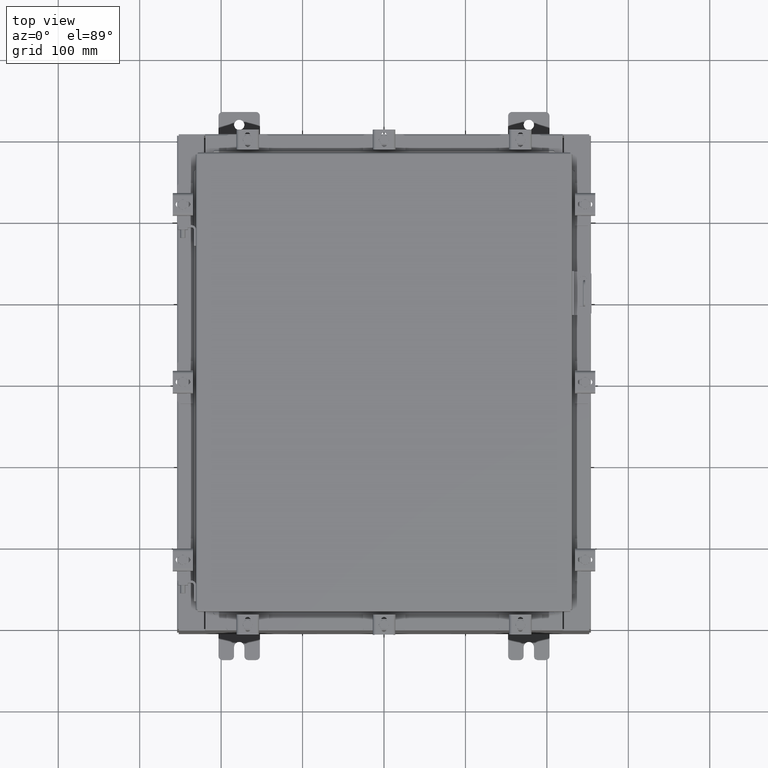
[diagram: clean part render]
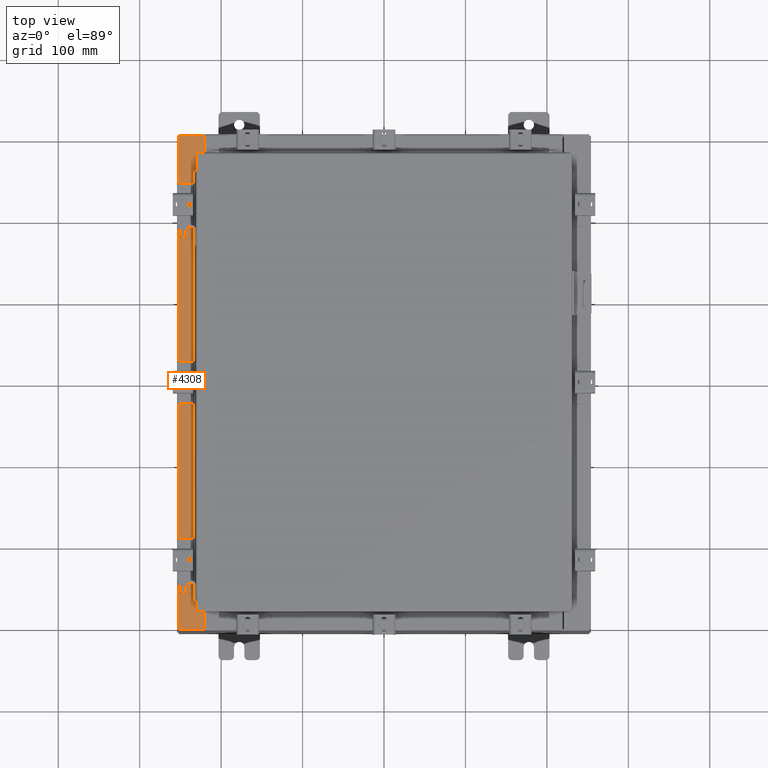
[diagram: same view with one face highlighted and labeled with its STEP entity id]
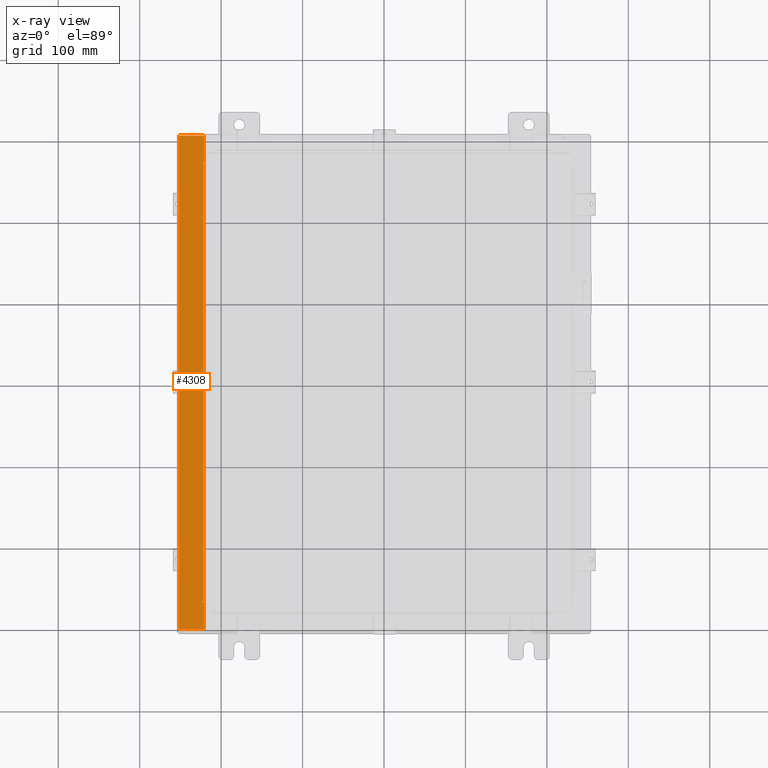
[diagram: x-ray of the same camera — body ghosted, the highlighted face saturated]
A machine part, top view. The second image highlights one B-rep face of the part: STEP entity #4308.
The next image is the same camera in x-ray: the body ghosted, the highlighted face saturated — about 0% of this face is hidden behind the body in this view.
In plain terms, the highlighted planar face has unit normal (0, 0, -1).
Its self-contained STEP definition (entity closure, byte-faithful):
#18 = LINE ( 'NONE', #11411, #4156 ) ;
#289 = CARTESIAN_POINT ( 'NONE',  ( -8.750050000000037200, -10.61242499999999300, 9.925300000000007100 ) ) ;
#371 = CARTESIAN_POINT ( 'NONE',  ( -8.712700000000035400, 10.59375000000000200, 9.925300000000007100 ) ) ;
#506 = VERTEX_POINT ( 'NONE', #3111 ) ;
#811 = LINE ( 'NONE', #15645, #9595 ) ;
#1470 = EDGE_CURVE ( 'NONE', #20922, #16883, #17257, .T. ) ;
#1563 = VECTOR ( 'NONE', #12637, 39.37007874015748100 ) ;
#2013 = EDGE_CURVE ( 'NONE', #6816, #8163, #2755, .T. ) ;
#2066 = DIRECTION ( 'NONE',  ( 1.000000000000000000, 0.0000000000000000000, 0.0000000000000000000 ) ) ;
#2755 = LINE ( 'NONE', #17030, #6840 ) ;
#2845 = DIRECTION ( 'NONE',  ( -1.000000000000000000, 0.0000000000000000000, 0.0000000000000000000 ) ) ;
#2927 = EDGE_CURVE ( 'NONE', #8943, #15716, #9525, .T. ) ;
#2987 = VERTEX_POINT ( 'NONE', #4336 ) ;
#3111 = CARTESIAN_POINT ( 'NONE',  ( -8.712700000000035400, -10.59374999999999300, 9.925300000000007100 ) ) ;
#3191 = ORIENTED_EDGE ( 'NONE', *, *, #11004, .F. ) ;
#3442 = AXIS2_PLACEMENT_3D ( 'NONE', #16708, #6274, #18440 ) ;
#3773 = ORIENTED_EDGE ( 'NONE', *, *, #19060, .T. ) ;
#4156 = VECTOR ( 'NONE', #21799, 39.37007874015748100 ) ;
#4275 = LINE ( 'NONE', #15037, #12994 ) ;
#4308 = ADVANCED_FACE ( 'NONE', ( #20929 ), #14792, .F. ) ;
#4336 = CARTESIAN_POINT ( 'NONE',  ( -9.912300000000035600, -11.92529999999999600, 9.925299999999998200 ) ) ;
#4760 = DIRECTION ( 'NONE',  ( -1.000000000000000000, -1.633973368572597200E-031, -7.132762385546378400E-015 ) ) ;
#4829 = CIRCLE ( 'NONE', #3442, 0.01867499999999949400 ) ;
#5296 = CARTESIAN_POINT ( 'NONE',  ( -9.912300000000035600, 11.92530000000000000, 9.925299999999998200 ) ) ;
#5573 = EDGE_CURVE ( 'NONE', #8943, #6816, #18437, .T. ) ;
#5828 = EDGE_CURVE ( 'NONE', #15716, #20922, #4829, .T. ) ;
#5856 = EDGE_CURVE ( 'NONE', #506, #11139, #4275, .T. ) ;
#6274 = DIRECTION ( 'NONE',  ( -7.132762385546378400E-015, -0.0000000000000000000, 1.000000000000000000 ) ) ;
#6326 = ORIENTED_EDGE ( 'NONE', *, *, #9462, .T. ) ;
#6448 = ORIENTED_EDGE ( 'NONE', *, *, #5573, .T. ) ;
#6578 = ORIENTED_EDGE ( 'NONE', *, *, #13529, .F. ) ;
#6594 = EDGE_LOOP ( 'NONE', ( #11961, #6448, #18488, #3191, #3773, #6326, #12826, #6578, #18800, #18165, #21714, #15121 ) ) ;
#6816 = VERTEX_POINT ( 'NONE', #12347 ) ;
#6840 = VECTOR ( 'NONE', #4760, 39.37007874015748100 ) ;
#7410 = DIRECTION ( 'NONE',  ( -6.427586101948161900E-031, 1.000000000000000000, -4.584644437783652100E-045 ) ) ;
#8051 = CARTESIAN_POINT ( 'NONE',  ( -9.912300000000035600, 11.92530000000000000, 9.925299999999998200 ) ) ;
#8163 = VERTEX_POINT ( 'NONE', #5296 ) ;
#8713 = DIRECTION ( 'NONE',  ( 1.000000000000000000, 0.0000000000000000000, 0.0000000000000000000 ) ) ;
#8943 = VERTEX_POINT ( 'NONE', #13488 ) ;
#9462 = EDGE_CURVE ( 'NONE', #22048, #22490, #18, .T. ) ;
#9525 = LINE ( 'NONE', #17825, #18254 ) ;
#9595 = VECTOR ( 'NONE', #8713, 39.37007874015748100 ) ;
#10267 = VERTEX_POINT ( 'NONE', #13206 ) ;
#10339 = LINE ( 'NONE', #371, #1563 ) ;
#10533 = EDGE_CURVE ( 'NONE', #10267, #22490, #811, .T. ) ;
#10873 = CIRCLE ( 'NONE', #18650, 0.01867499999999949400 ) ;
#11004 = EDGE_CURVE ( 'NONE', #2987, #8163, #21039, .T. ) ;
#11139 = VERTEX_POINT ( 'NONE', #11894 ) ;
#11411 = CARTESIAN_POINT ( 'NONE',  ( -8.699700000000035500, -5.591807081111819100E-030, 9.925300000000007100 ) ) ;
#11887 = DIRECTION ( 'NONE',  ( 1.000000000000000000, 0.0000000000000000000, 0.0000000000000000000 ) ) ;
#11894 = CARTESIAN_POINT ( 'NONE',  ( -8.750050000000037200, -10.59374999999999300, 9.925300000000005300 ) ) ;
#11961 = ORIENTED_EDGE ( 'NONE', *, *, #2927, .F. ) ;
#12347 = CARTESIAN_POINT ( 'NONE',  ( -8.699700000000035500, 11.92530000000000000, 9.925300000000007100 ) ) ;
#12529 = DIRECTION ( 'NONE',  ( -7.132762385546378400E-015, -0.0000000000000000000, 1.000000000000000000 ) ) ;
#12632 = VECTOR ( 'NONE', #11887, 39.37007874015748100 ) ;
#12637 = DIRECTION ( 'NONE',  ( -0.0000000000000000000, -1.000000000000000000, -0.0000000000000000000 ) ) ;
#12826 = ORIENTED_EDGE ( 'NONE', *, *, #10533, .F. ) ;
#12915 = EDGE_CURVE ( 'NONE', #16883, #506, #10339, .T. ) ;
#12994 = VECTOR ( 'NONE', #2845, 39.37007874015748100 ) ;
#13158 = CARTESIAN_POINT ( 'NONE',  ( -8.750050000000037200, 10.63109999999999800, 9.925300000000005300 ) ) ;
#13179 = CARTESIAN_POINT ( 'NONE',  ( -8.750050000000037200, 10.59375000000000000, 9.925300000000005300 ) ) ;
#13206 = CARTESIAN_POINT ( 'NONE',  ( -8.750050000000037200, -10.63109999999999300, 9.925300000000005300 ) ) ;
#13286 = VECTOR ( 'NONE', #7410, 39.37007874015748100 ) ;
#13471 = DIRECTION ( 'NONE',  ( -1.000000000000000000, -4.340572780399910900E-014, 0.0000000000000000000 ) ) ;
#13488 = CARTESIAN_POINT ( 'NONE',  ( -8.699700000000035500, 10.63110000000000200, 9.925300000000007100 ) ) ;
#13529 = EDGE_CURVE ( 'NONE', #11139, #10267, #10873, .T. ) ;
#14116 = CARTESIAN_POINT ( 'NONE',  ( -8.712700000000035400, 10.59375000000000000, 9.925300000000007100 ) ) ;
#14594 = DIRECTION ( 'NONE',  ( -1.000000000000000000, 0.0000000000000000000, -7.132762385546378400E-015 ) ) ;
#14670 = DIRECTION ( 'NONE',  ( 7.132762385546378400E-015, 0.0000000000000000000, -1.000000000000000000 ) ) ;
#14728 = CARTESIAN_POINT ( 'NONE',  ( -7.105562016127552700E-014, 0.0000000000000000000, 9.925300000000067500 ) ) ;
#14792 = PLANE ( 'NONE',  #18871 ) ;
#15037 = CARTESIAN_POINT ( 'NONE',  ( -8.712700000000035400, -10.59374999999999300, 9.925300000000007100 ) ) ;
#15121 = ORIENTED_EDGE ( 'NONE', *, *, #5828, .F. ) ;
#15645 = CARTESIAN_POINT ( 'NONE',  ( -8.750050000000037200, -10.63109999999999300, 9.925300000000007100 ) ) ;
#15716 = VERTEX_POINT ( 'NONE', #13158 ) ;
#15997 = VECTOR ( 'NONE', #18054, 39.37007874015748100 ) ;
#16178 = CARTESIAN_POINT ( 'NONE',  ( -8.699700000000035500, -11.92529999999999500, 9.925300000000007100 ) ) ;
#16283 = CARTESIAN_POINT ( 'NONE',  ( -4.979053734218649800E-014, -11.92529999999998000, 9.925300000000067500 ) ) ;
#16708 = CARTESIAN_POINT ( 'NONE',  ( -8.750050000000037200, 10.61242500000000000, 9.925300000000007100 ) ) ;
#16883 = VERTEX_POINT ( 'NONE', #14116 ) ;
#17030 = CARTESIAN_POINT ( 'NONE',  ( -7.105562016127552700E-014, 11.92530000000000000, 9.925300000000067500 ) ) ;
#17257 = LINE ( 'NONE', #17436, #12632 ) ;
#17436 = CARTESIAN_POINT ( 'NONE',  ( -8.750050000000037200, 10.59375000000000000, 9.925300000000007100 ) ) ;
#17825 = CARTESIAN_POINT ( 'NONE',  ( -8.699700000000035500, 10.63110000000000200, 9.925300000000007100 ) ) ;
#17864 = CARTESIAN_POINT ( 'NONE',  ( -8.699700000000035500, -5.591807081111819100E-030, 9.925300000000007100 ) ) ;
#18054 = DIRECTION ( 'NONE',  ( 1.000000000000000000, 1.783190596386595000E-015, 7.132762385546378400E-015 ) ) ;
#18165 = ORIENTED_EDGE ( 'NONE', *, *, #12915, .F. ) ;
#18254 = VECTOR ( 'NONE', #13471, 39.37007874015748100 ) ;
#18437 = LINE ( 'NONE', #17864, #13286 ) ;
#18440 = DIRECTION ( 'NONE',  ( 1.000000000000000000, 0.0000000000000000000, 0.0000000000000000000 ) ) ;
#18488 = ORIENTED_EDGE ( 'NONE', *, *, #2013, .T. ) ;
#18650 = AXIS2_PLACEMENT_3D ( 'NONE', #289, #12529, #2066 ) ;
#18800 = ORIENTED_EDGE ( 'NONE', *, *, #5856, .F. ) ;
#18871 = AXIS2_PLACEMENT_3D ( 'NONE', #14728, #14670, #14594 ) ;
#19060 = EDGE_CURVE ( 'NONE', #2987, #22048, #20634, .T. ) ;
#19923 = VECTOR ( 'NONE', #21957, 39.37007874015748100 ) ;
#20634 = LINE ( 'NONE', #16283, #15997 ) ;
#20749 = CARTESIAN_POINT ( 'NONE',  ( -8.699700000000035500, -10.63109999999999300, 9.925300000000007100 ) ) ;
#20922 = VERTEX_POINT ( 'NONE', #13179 ) ;
#20929 = FACE_OUTER_BOUND ( 'NONE', #6594, .T. ) ;
#21039 = LINE ( 'NONE', #8051, #19923 ) ;
#21714 = ORIENTED_EDGE ( 'NONE', *, *, #1470, .F. ) ;
#21799 = DIRECTION ( 'NONE',  ( -6.427586101948161900E-031, 1.000000000000000000, -4.584644437783652100E-045 ) ) ;
#21957 = DIRECTION ( 'NONE',  ( -0.0000000000000000000, 1.000000000000000000, -0.0000000000000000000 ) ) ;
#22048 = VERTEX_POINT ( 'NONE', #16178 ) ;
#22490 = VERTEX_POINT ( 'NONE', #20749 ) ;